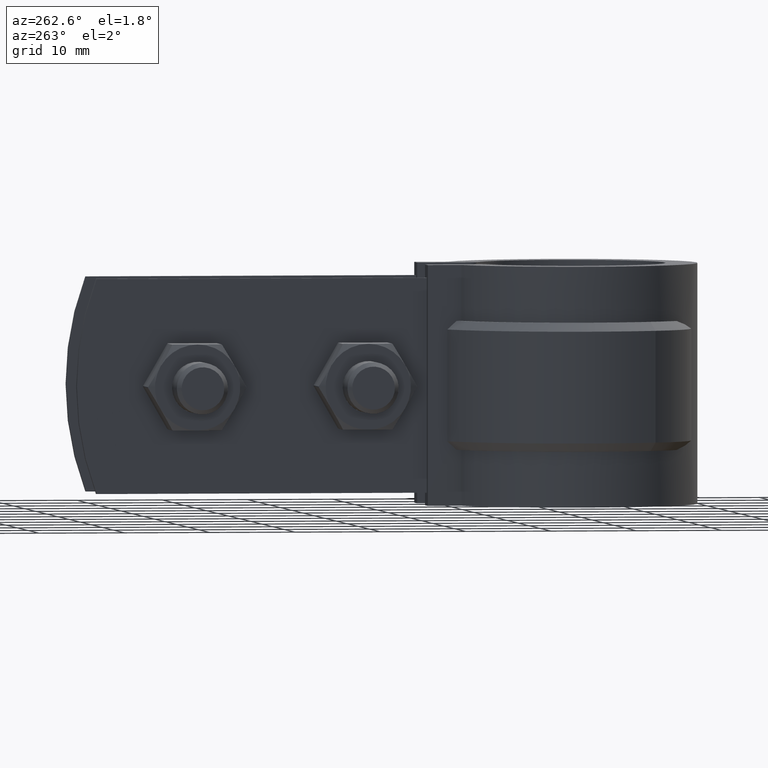
[diagram: clean part render]
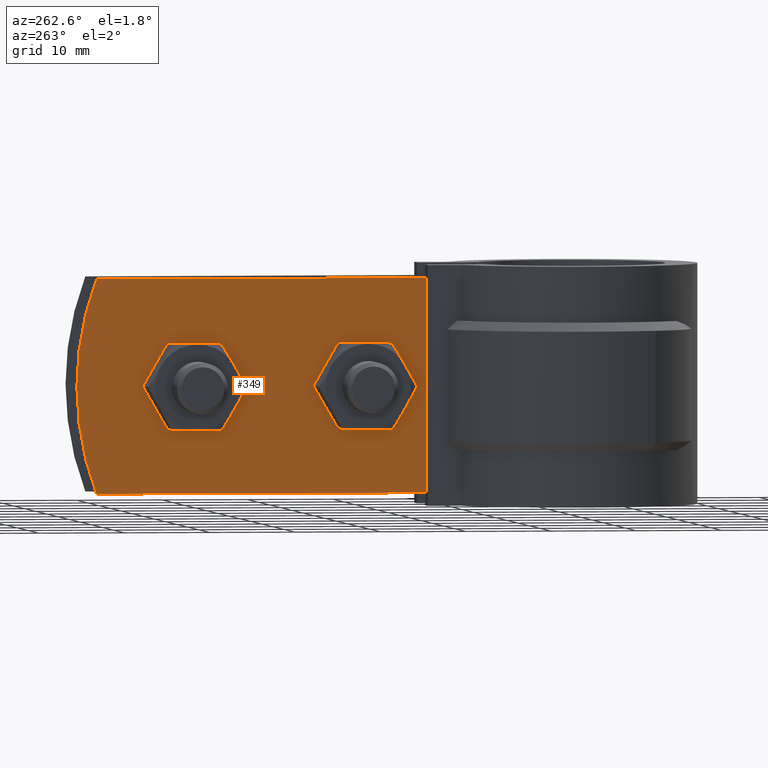
[diagram: same view with one face highlighted and labeled with its STEP entity id]
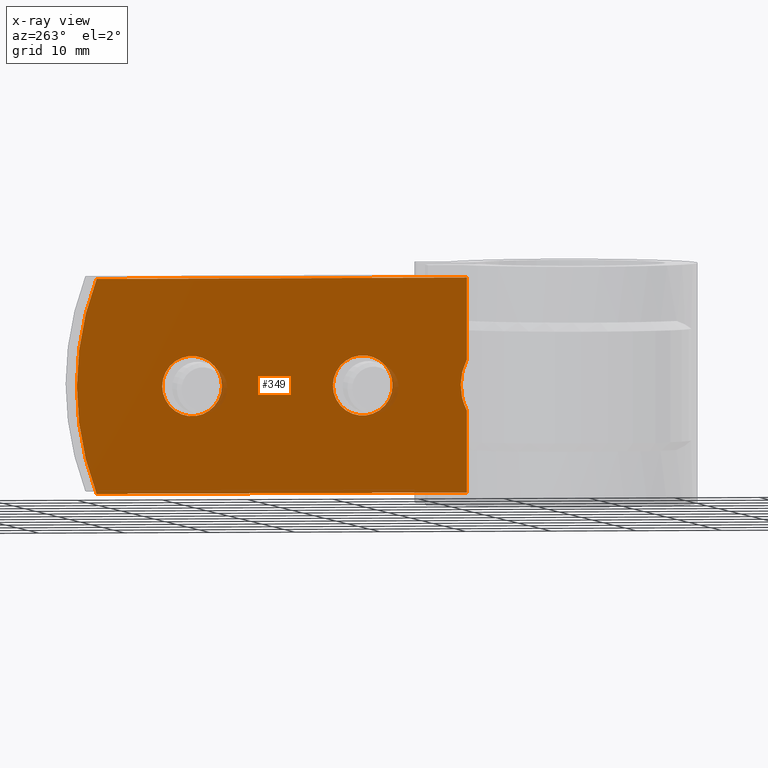
[diagram: x-ray of the same camera — body ghosted, the highlighted face saturated]
A machine part, auxiliary view. The second image highlights one B-rep face of the part: STEP entity #349.
The next image is the same camera in x-ray: the body ghosted, the highlighted face saturated — about 1% of this face is hidden behind the body in this view.
In plain terms, the highlighted planar face has unit normal (1, -0, 0).
Its self-contained STEP definition (entity closure, byte-faithful):
#349 = ADVANCED_FACE( '', ( #575, #576, #577 ), #578, .F. );
#575 = FACE_BOUND( '', #1121, .T. );
#576 = FACE_BOUND( '', #1122, .T. );
#577 = FACE_OUTER_BOUND( '', #1123, .T. );
#578 = PLANE( '', #1124 );
#1121 = EDGE_LOOP( '', ( #2471 ) );
#1122 = EDGE_LOOP( '', ( #2472 ) );
#1123 = EDGE_LOOP( '', ( #2473, #2474, #2475, #2476, #2477, #2478 ) );
#1124 = AXIS2_PLACEMENT_3D( '', #2479, #2480, #2481 );
#2471 = ORIENTED_EDGE( '', *, *, #4271, .F. );
#2472 = ORIENTED_EDGE( '', *, *, #4268, .F. );
#2473 = ORIENTED_EDGE( '', *, *, #4266, .F. );
#2474 = ORIENTED_EDGE( '', *, *, #4272, .F. );
#2475 = ORIENTED_EDGE( '', *, *, #4157, .F. );
#2476 = ORIENTED_EDGE( '', *, *, #4207, .F. );
#2477 = ORIENTED_EDGE( '', *, *, #4199, .T. );
#2478 = ORIENTED_EDGE( '', *, *, #4270, .F. );
#2479 = CARTESIAN_POINT( '', ( -5.10000000000000, 58.4580146622353, 0.000000000000000 ) );
#2480 = DIRECTION( '', ( 1.00000000000000, -6.12303176911189E-017, 0.000000000000000 ) );
#2481 = DIRECTION( '', ( -6.12303176911189E-017, -1.00000000000000, 0.000000000000000 ) );
#4157 = EDGE_CURVE( '', #4664, #4667, #4668, .T. );
#4199 = EDGE_CURVE( '', #4742, #4740, #4743, .T. );
#4207 = EDGE_CURVE( '', #4742, #4664, #4756, .T. );
#4266 = EDGE_CURVE( '', #4846, #4844, #4848, .T. );
#4268 = EDGE_CURVE( '', #4851, #4851, #4852, .F. );
#4270 = EDGE_CURVE( '', #4844, #4740, #4855, .T. );
#4271 = EDGE_CURVE( '', #4856, #4856, #4857, .F. );
#4272 = EDGE_CURVE( '', #4667, #4846, #4858, .T. );
#4664 = VERTEX_POINT( '', #5581 );
#4667 = VERTEX_POINT( '', #5585 );
#4668 = LINE( '', #5586, #5587 );
#4740 = VERTEX_POINT( '', #5914 );
#4742 = VERTEX_POINT( '', #5916 );
#4743 = LINE( '', #5917, #5918 );
#4756 = CIRCLE( '', #5934, 35.0000000000000 );
#4844 = VERTEX_POINT( '', #6333 );
#4846 = VERTEX_POINT( '', #6348 );
#4848 = B_SPLINE_CURVE_WITH_KNOTS( '', 3, ( #6363, #6364, #6365, #6366, #6367, #6368, #6369, #6370, #6371, #6372, #6373, #6374, #6375 ), .UNSPECIFIED., .F., .F., ( 4, 2, 2, 1, 2, 2, 4 ), ( 9.34177181294034E-018, 0.00154494556300112, 0.00231741834450168, 0.00308989112600224, 0.00386236390750280, 0.00463483668900336, 0.00617978225200447 ), .UNSPECIFIED. );
#4851 = VERTEX_POINT( '', #6378 );
#4852 = CIRCLE( '', #6379, 3.50000000000000 );
#4855 = LINE( '', #6382, #6383 );
#4856 = VERTEX_POINT( '', #6384 );
#4857 = CIRCLE( '', #6385, 3.50000000000000 );
#4858 = LINE( '', #6386, #6387 );
#5581 = CARTESIAN_POINT( '', ( -5.09999999999999, 56.1497567387904, -4.29669956125161E-031 ) );
#5585 = CARTESIAN_POINT( '', ( -5.10000000000000, 12.7485724691042, 0.000000000000000 ) );
#5586 = CARTESIAN_POINT( '', ( -5.10000000000000, 58.4580146622353, 0.000000000000000 ) );
#5587 = VECTOR( '', #7976, 1000.00000000000 );
#5914 = CARTESIAN_POINT( '', ( -5.10000000000000, 12.7485724691042, -25.0000000000000 ) );
#5916 = CARTESIAN_POINT( '', ( -5.09999999999999, 56.1497567387904, -25.0000000000000 ) );
#5917 = CARTESIAN_POINT( '', ( -5.10000000000000, 58.4580146622353, -25.0000000000000 ) );
#5918 = VECTOR( '', #8025, 1000.00000000000 );
#5934 = AXIS2_PLACEMENT_3D( '', #8041, #8042, #8043 );
#6333 = CARTESIAN_POINT( '', ( -5.10000000000000, 12.7485724691042, -15.4837951654384 ) );
#6348 = CARTESIAN_POINT( '', ( -5.10000000000000, 12.7485724691042, -9.51620483456164 ) );
#6363 = CARTESIAN_POINT( '', ( -5.10000000000000, 12.7485724691042, -9.51620483456163 ) );
#6364 = CARTESIAN_POINT( '', ( -5.10000000000000, 12.9866172798646, -9.97975154442483 ) );
#6365 = CARTESIAN_POINT( '', ( -5.10000000000000, 13.1665509757478, -10.4626251012847 ) );
#6366 = CARTESIAN_POINT( '', ( -5.10000000000000, 13.3513480558411, -11.2152395161969 ) );
#6367 = CARTESIAN_POINT( '', ( -5.09999999999999, 13.3986927600009, -11.4726051935498 ) );
#6368 = CARTESIAN_POINT( '', ( -5.09999999999999, 13.4614587026653, -11.9863195546137 ) );
#6369 = CARTESIAN_POINT( '', ( -5.09999999999985, 13.4929650150004, -12.4997878708827 ) );
#6370 = CARTESIAN_POINT( '', ( -5.09999999999999, 13.4615135256454, -13.0127606458019 ) );
#6371 = CARTESIAN_POINT( '', ( -5.09999999999999, 13.3989828798544, -13.5254887964375 ) );
#6372 = CARTESIAN_POINT( '', ( -5.10000000000000, 13.3517303698018, -13.7829791713213 ) );
#6373 = CARTESIAN_POINT( '', ( -5.10000000000000, 13.1667583011510, -14.5369773325105 ) );
#6374 = CARTESIAN_POINT( '', ( -5.10000000000000, 12.9866118316508, -15.0202590649289 ) );
#6375 = CARTESIAN_POINT( '', ( -5.10000000000000, 12.7485724691041, -15.4837951654384 ) );
#6378 = CARTESIAN_POINT( '', ( -5.10000000000000, 28.4580146622353, -12.5000000000000 ) );
#6379 = AXIS2_PLACEMENT_3D( '', #8100, #8101, #8102 );
#6382 = CARTESIAN_POINT( '', ( -5.10000000000000, 12.7485724691042, 0.000000000000000 ) );
#6383 = VECTOR( '', #8106, 1000.00000000000 );
#6384 = CARTESIAN_POINT( '', ( -5.10000000000000, 48.4580146622353, -12.5000000000000 ) );
#6385 = AXIS2_PLACEMENT_3D( '', #8107, #8108, #8109 );
#6386 = CARTESIAN_POINT( '', ( -5.10000000000000, 12.7485724691042, 0.000000000000000 ) );
#6387 = VECTOR( '', #8110, 1000.00000000000 );
#7976 = DIRECTION( '', ( -6.12303176911189E-017, -1.00000000000000, 0.000000000000000 ) );
#8025 = DIRECTION( '', ( -6.12303176911189E-017, -1.00000000000000, 0.000000000000000 ) );
#8041 = CARTESIAN_POINT( '', ( -5.09999999999999, 23.4580146622353, -12.5000000000000 ) );
#8042 = DIRECTION( '', ( 1.00000000000000, -6.12303176911189E-017, 0.000000000000000 ) );
#8043 = DIRECTION( '', ( 6.12303176911189E-017, 1.00000000000000, 0.000000000000000 ) );
#8100 = CARTESIAN_POINT( '', ( -5.10000000000000, 24.9580146622353, -12.5000000000000 ) );
#8101 = DIRECTION( '', ( 1.00000000000000, -6.12303176911189E-017, 0.000000000000000 ) );
#8102 = DIRECTION( '', ( 6.12303176911189E-017, 1.00000000000000, 0.000000000000000 ) );
#8106 = DIRECTION( '', ( 0.000000000000000, 0.000000000000000, -1.00000000000000 ) );
#8107 = CARTESIAN_POINT( '', ( -5.10000000000000, 44.9580146622353, -12.5000000000000 ) );
#8108 = DIRECTION( '', ( 1.00000000000000, -6.12303176911189E-017, 0.000000000000000 ) );
#8109 = DIRECTION( '', ( 6.12303176911189E-017, 1.00000000000000, 0.000000000000000 ) );
#8110 = DIRECTION( '', ( 0.000000000000000, 0.000000000000000, -1.00000000000000 ) );